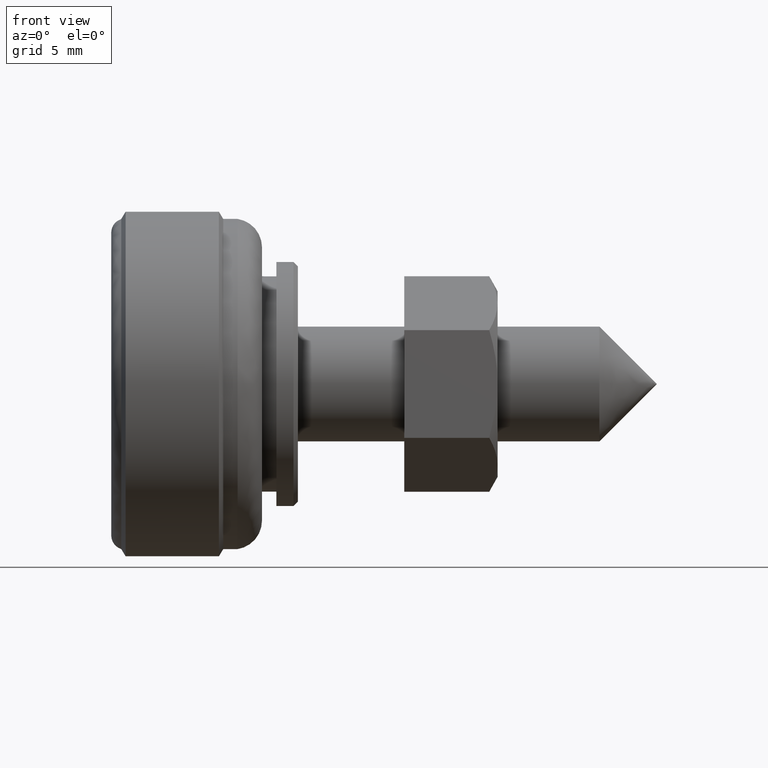
[diagram: clean part render]
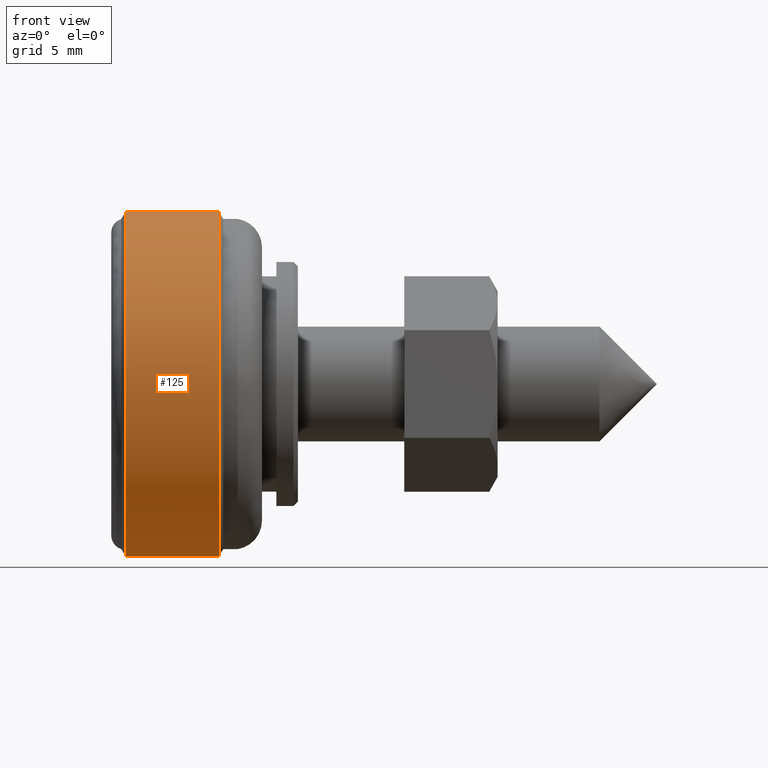
[diagram: same view with one face highlighted and labeled with its STEP entity id]
A machine part, front view. The second image highlights one B-rep face of the part: STEP entity #125.
In plain terms, the highlighted cylindrical surface (partial cylindrical patch) has radius 12 mm, axis along (1, 0, 0).
Its self-contained STEP definition (entity closure, byte-faithful):
#125=ADVANCED_FACE('',(#288),#287,.T.);
#287=CYLINDRICAL_SURFACE('',#716,1.20000000000E+01);
#288=FACE_OUTER_BOUND('',#717,.T.);
#713=CARTESIAN_POINT('',(0.00000000000E+00,0.00000000000E+00,0.00000000000E+00));
#714=DIRECTION('',(1.00000000000E+00,-0.00000000000E+00,-0.00000000000E+00));
#715=DIRECTION('',(-0.00000000000E+00,-0.00000000000E+00,-1.00000000000E+00));
#716=AXIS2_PLACEMENT_3D('',#713,#714,#715);
#717=EDGE_LOOP('',(#986,#987,#988,#989));
#986=ORIENTED_EDGE('',*,*,#1138,.F.);
#987=ORIENTED_EDGE('',*,*,#1145,.T.);
#988=ORIENTED_EDGE('',*,*,#1147,.T.);
#989=ORIENTED_EDGE('',*,*,#1146,.F.);
#1138=EDGE_CURVE('',#1365,#1366,#1367,.T.);
#1145=EDGE_CURVE('',#1365,#1406,#1413,.T.);
#1146=EDGE_CURVE('',#1366,#1405,#1419,.T.);
#1147=EDGE_CURVE('',#1406,#1405,#1425,.T.);
#1365=VERTEX_POINT('',#1890);
#1366=VERTEX_POINT('',#1891);
#1367=CIRCLE('',#1895,1.20000000000E+01);
#1405=VERTEX_POINT('',#1914);
#1406=VERTEX_POINT('',#1915);
#1413=(BOUNDED_CURVE() B_SPLINE_CURVE(1,(#1920,#1921),.UNSPECIFIED.,.F.,.F.) B_SPLINE_CURVE_WITH_KNOTS((2,2),(8.33333347523E-02,9.16666664312E-01),.UNSPECIFIED.) CURVE() GEOMETRIC_REPRESENTATION_ITEM() RATIONAL_B_SPLINE_CURVE((1.00000000000E+00,1.00000000000E+00)) REPRESENTATION_ITEM('') );
#1419=(BOUNDED_CURVE() B_SPLINE_CURVE(1,(#1922,#1923),.UNSPECIFIED.,.F.,.F.) B_SPLINE_CURVE_WITH_KNOTS((2,2),(8.33333333333E-02,9.16666666667E-01),.UNSPECIFIED.) CURVE() GEOMETRIC_REPRESENTATION_ITEM() RATIONAL_B_SPLINE_CURVE((7.50000000000E-01,7.50000000000E-01)) REPRESENTATION_ITEM('') );
#1425=CIRCLE('',#1927,1.20000000000E+01);
#1890=CARTESIAN_POINT('',(-3.70000000000E+01,-5.92118946467E-16,-1.20000000000E+01));
#1891=CARTESIAN_POINT('',(-3.70000000000E+01,0.00000000000E+00,1.20000000000E+01));
#1892=CARTESIAN_POINT('',(-3.70000000000E+01,0.00000000000E+00,0.00000000000E+00));
#1893=DIRECTION('',(-1.00000000000E+00,0.00000000000E+00,0.00000000000E+00));
#1894=DIRECTION('',(0.00000000000E+00,-1.22460635382E-16,1.00000000000E+00));
#1895=AXIS2_PLACEMENT_3D('',#1892,#1893,#1894);
#1914=CARTESIAN_POINT('',(-3.05000000000E+01,0.00000000000E+00,1.20000000000E+01));
#1915=CARTESIAN_POINT('',(-3.05000000000E+01,-1.29674049276E-13,-1.20000000000E+01));
#1920=CARTESIAN_POINT('',(-3.69999999889E+01,0.00000000000E+00,-1.20000000000E+01));
#1921=CARTESIAN_POINT('',(-3.05000000184E+01,0.00000000000E+00,-1.20000000000E+01));
#1922=CARTESIAN_POINT('',(-3.70000000000E+01,-5.92118946467E-16,1.20000000000E+01));
#1923=CARTESIAN_POINT('',(-3.05000000000E+01,-5.92118946467E-16,1.20000000000E+01));
#1924=CARTESIAN_POINT('',(-3.05000000000E+01,0.00000000000E+00,0.00000000000E+00));
#1925=DIRECTION('',(-1.00000000000E+00,0.00000000000E+00,0.00000000000E+00));
#1926=DIRECTION('',(0.00000000000E+00,-1.22460635382E-16,1.00000000000E+00));
#1927=AXIS2_PLACEMENT_3D('',#1924,#1925,#1926);